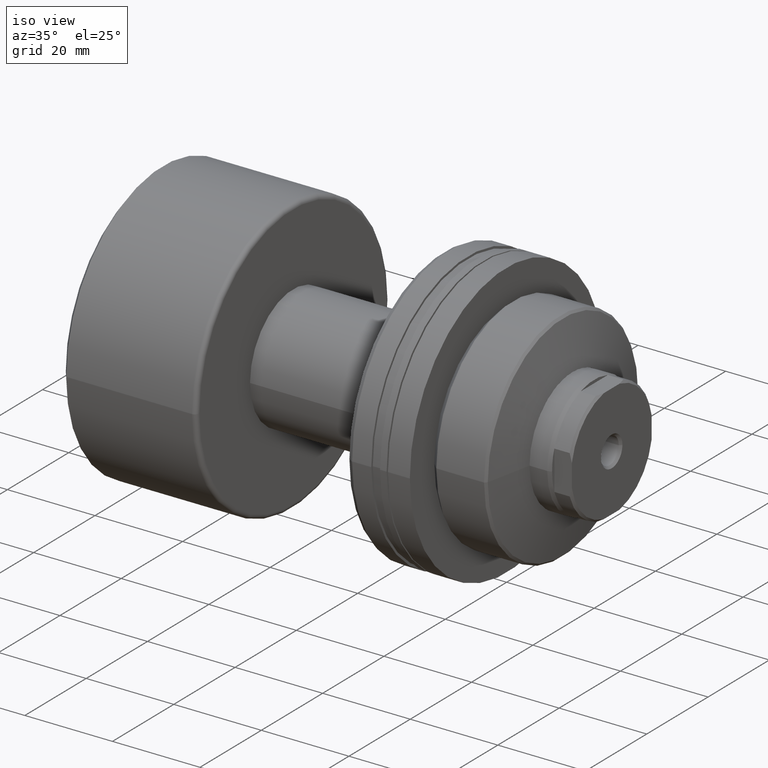
[diagram: clean part render]
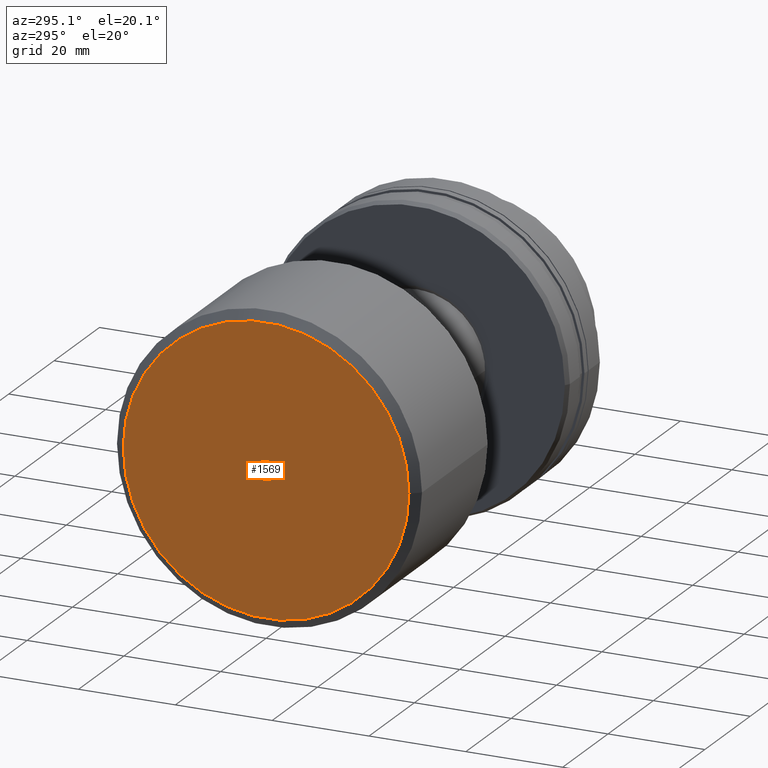
[diagram: tour spotlight — one face highlighted and labeled with its STEP entity id]
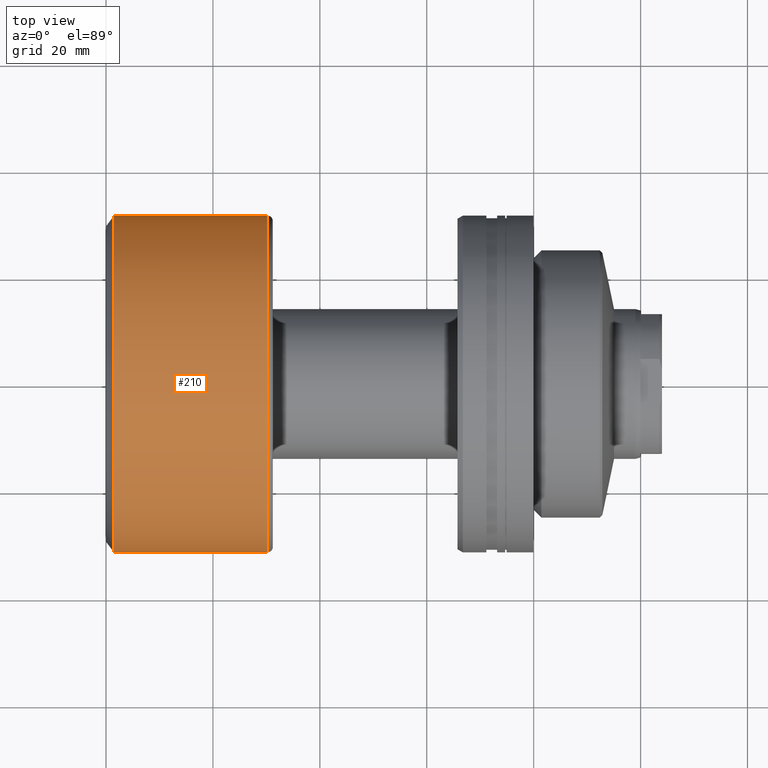
[diagram: tour spotlight — one face highlighted and labeled with its STEP entity id]
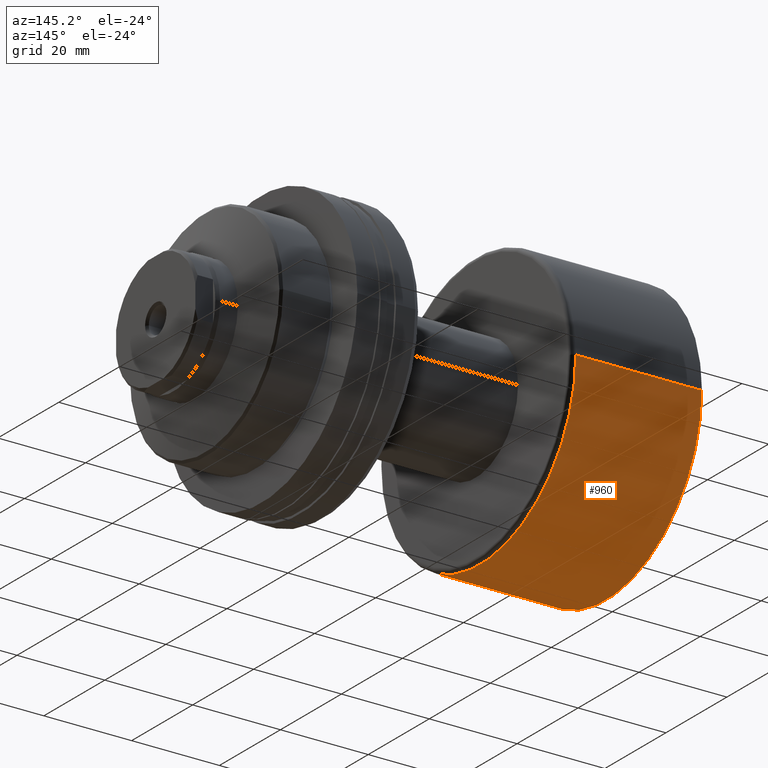
[diagram: tour spotlight — one face highlighted and labeled with its STEP entity id]
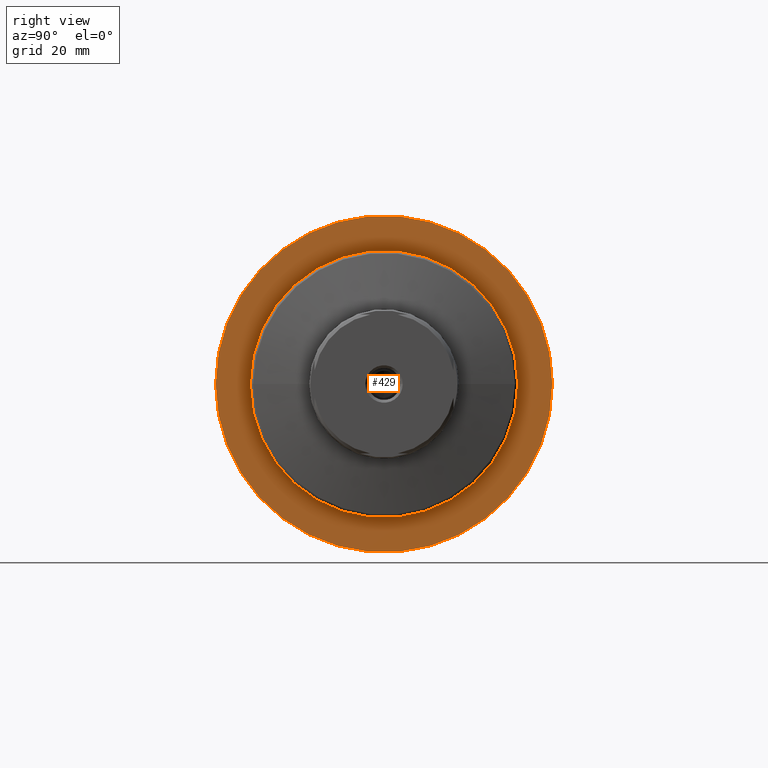
[diagram: tour spotlight — one face highlighted and labeled with its STEP entity id]
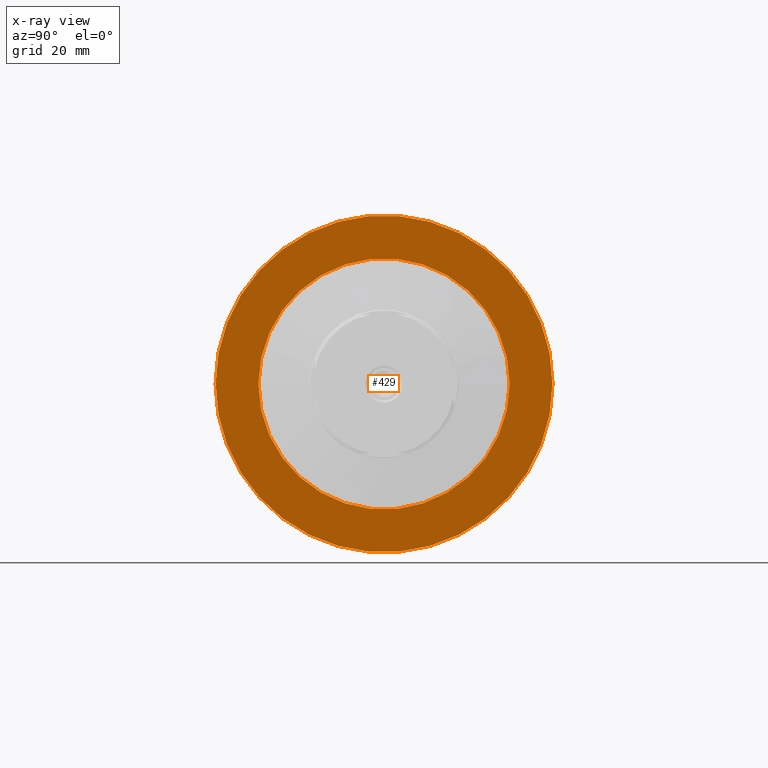
[diagram: x-ray of the same camera — body ghosted, this tour face saturated]
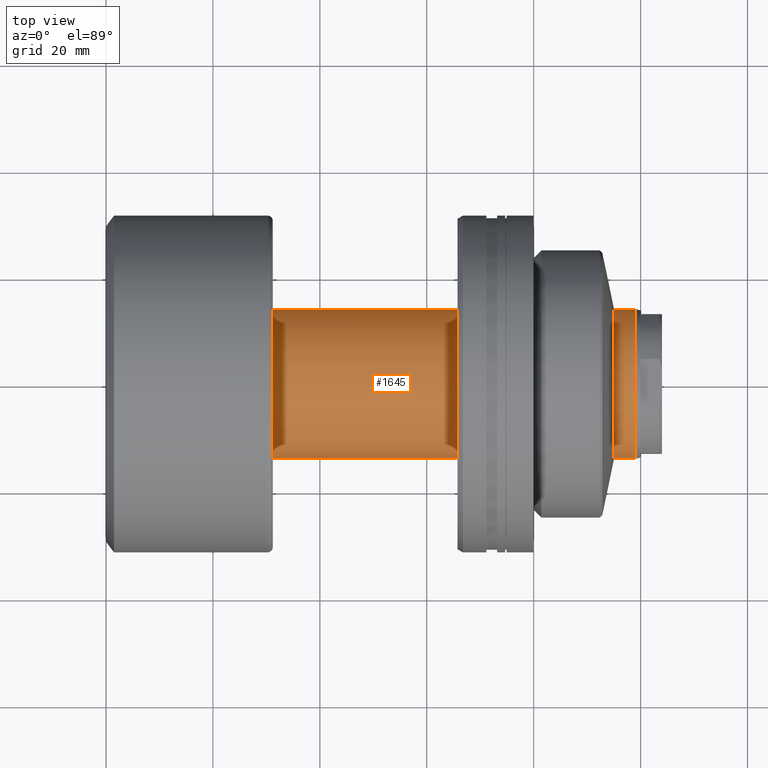
[diagram: tour spotlight — one face highlighted and labeled with its STEP entity id]
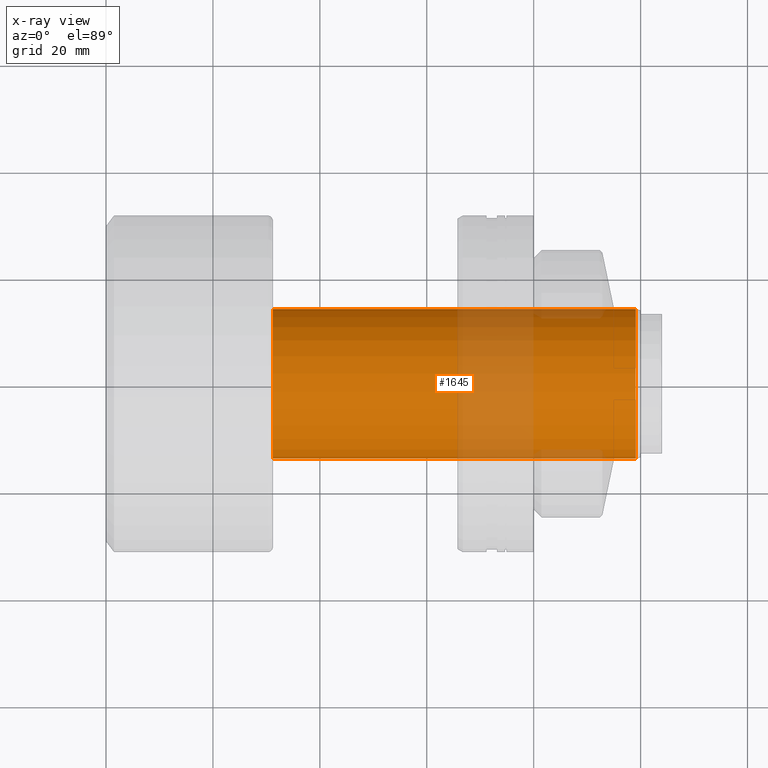
[diagram: x-ray of the same camera — body ghosted, this tour face saturated]
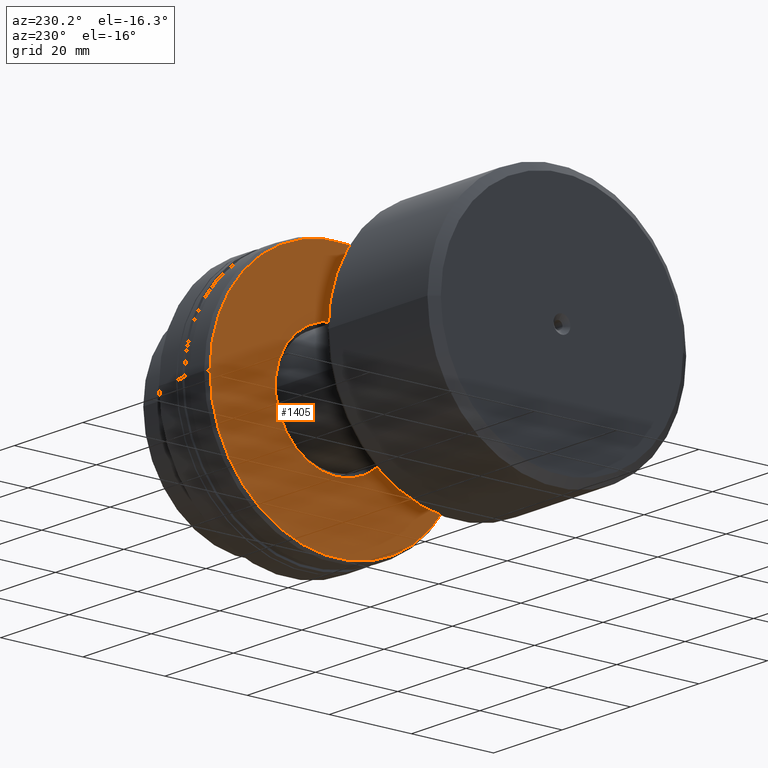
[diagram: tour spotlight — one face highlighted and labeled with its STEP entity id]
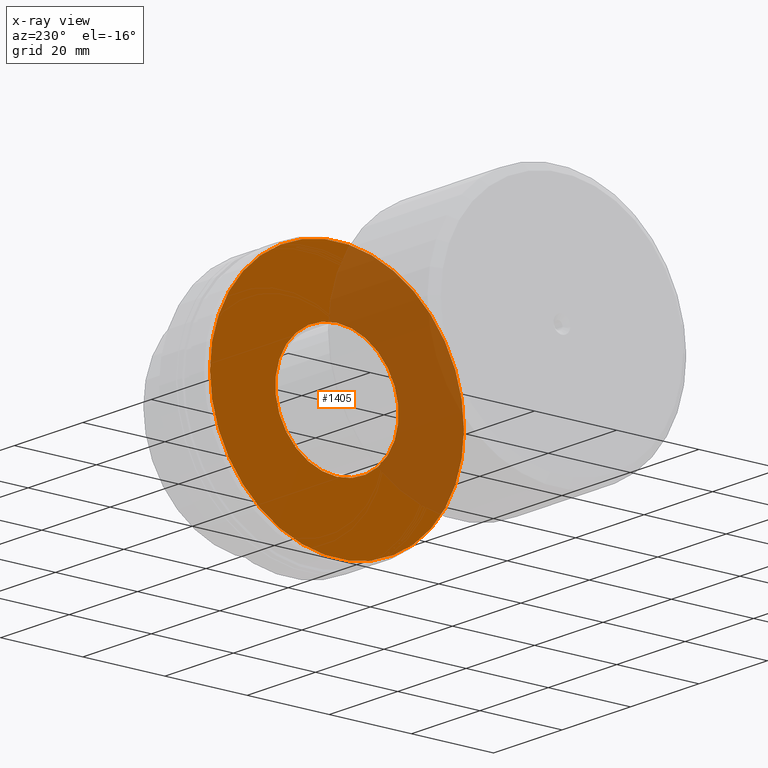
[diagram: x-ray of the same camera — body ghosted, this tour face saturated]
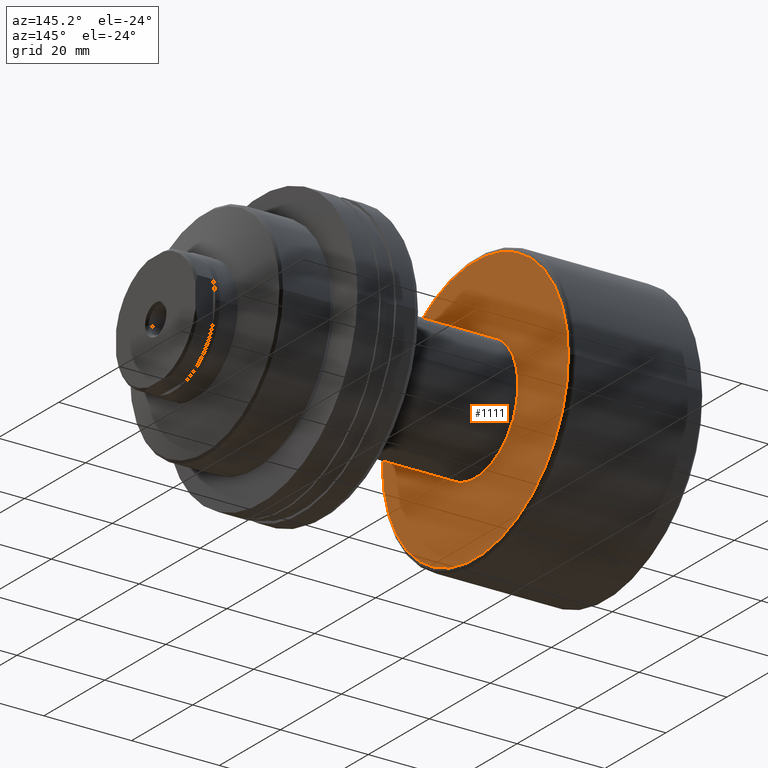
[diagram: tour spotlight — one face highlighted and labeled with its STEP entity id]
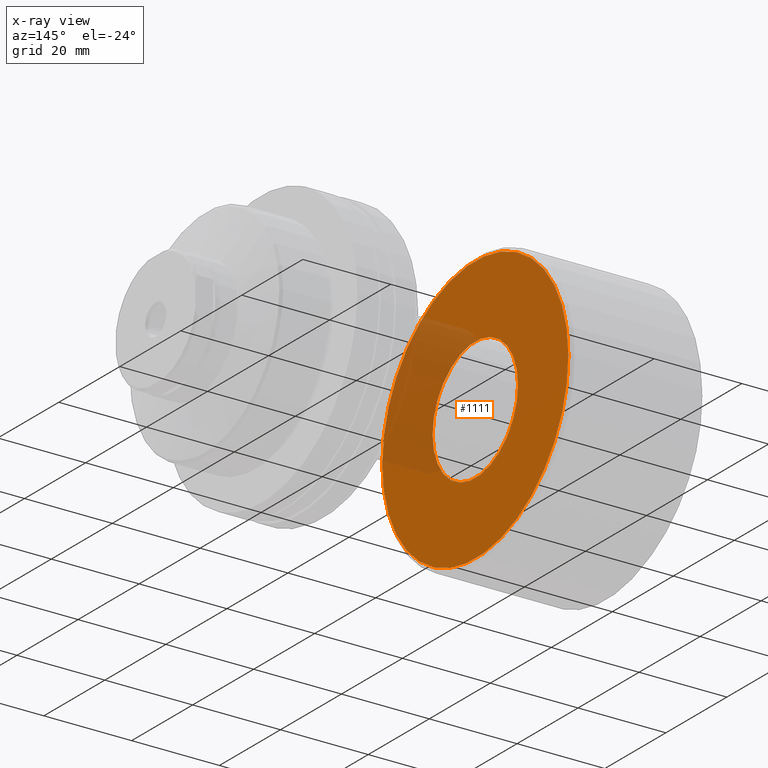
[diagram: x-ray of the same camera — body ghosted, this tour face saturated]
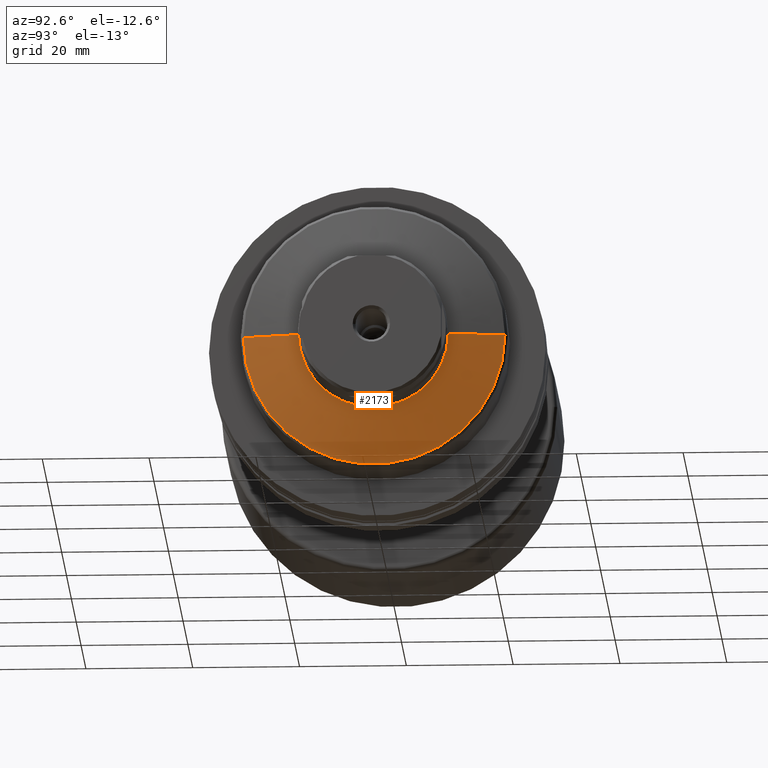
[diagram: tour spotlight — one face highlighted and labeled with its STEP entity id]
A machine part: a face-by-face anatomy tour. The part has 74 B-rep faces; the first image is the clean iso view, then the 8 largest visible faces are spotlighted one at a time (largest first), each with its STEP entity span.

Face 1 — auxiliary view, entity #1569. In plain terms, the highlighted planar face has unit normal (-1, -0, 0).
Definition (entity closure, byte-faithful):
#12 = CIRCLE ( 'NONE', #461, 29.50000000000000000 ) ;
#44 = EDGE_LOOP ( 'NONE', ( #328, #1307 ) ) ;
#79 = CARTESIAN_POINT ( 'NONE',  ( 1.648596536237158567E-15, 2.541142108230784202E-16, -2.075000000000021494 ) ) ;
#180 = AXIS2_PLACEMENT_3D ( 'NONE', #1364, #2208, #1503 ) ;
#191 = VERTEX_POINT ( 'NONE', #2124 ) ;
#234 = AXIS2_PLACEMENT_3D ( 'NONE', #716, #1583, #2290 ) ;
#280 = ORIENTED_EDGE ( 'NONE', *, *, #394, .T. ) ;
#328 = ORIENTED_EDGE ( 'NONE', *, *, #1773, .T. ) ;
#331 = PLANE ( 'NONE',  #234 ) ;
#394 = EDGE_CURVE ( 'NONE', #972, #1181, #1139, .T. ) ;
#461 = AXIS2_PLACEMENT_3D ( 'NONE', #989, #653, #1175 ) ;
#500 = FACE_BOUND ( 'NONE', #44, .T. ) ;
#520 = AXIS2_PLACEMENT_3D ( 'NONE', #1719, #1332, #1909 ) ;
#653 = DIRECTION ( 'NONE',  ( -1.000000000000000000, -1.069542322069065801E-17, -0.000000000000000000 ) ) ;
#716 = CARTESIAN_POINT ( 'NONE',  ( 1.648596536237158567E-15, 1.763243767522109653E-32, 0.000000000000000000 ) ) ;
#746 = CIRCLE ( 'NONE', #2213, 2.075000000000021494 ) ;
#972 = VERTEX_POINT ( 'NONE', #1322 ) ;
#989 = CARTESIAN_POINT ( 'NONE',  ( 3.297193072474317133E-15, 3.526487535044219306E-32, 0.000000000000000000 ) ) ;
#1139 = CIRCLE ( 'NONE', #520, 29.50000000000000000 ) ;
#1175 = DIRECTION ( 'NONE',  ( 1.069542322069065647E-17, -1.000000000000000000, 0.000000000000000000 ) ) ;
#1181 = VERTEX_POINT ( 'NONE', #1673 ) ;
#1220 = CARTESIAN_POINT ( 'NONE',  ( 1.648596536237158567E-15, 0.000000000000000000, 0.000000000000000000 ) ) ;
#1280 = EDGE_LOOP ( 'NONE', ( #1916, #280 ) ) ;
#1307 = ORIENTED_EDGE ( 'NONE', *, *, #1331, .T. ) ;
#1322 = CARTESIAN_POINT ( 'NONE',  ( 3.612708057484691604E-15, -29.50000000000000000, 3.735172737399426752E-15 ) ) ;
#1331 = EDGE_CURVE ( 'NONE', #1459, #191, #746, .T. ) ;
#1332 = DIRECTION ( 'NONE',  ( -1.000000000000000000, -1.069542322069065801E-17, -0.000000000000000000 ) ) ;
#1364 = CARTESIAN_POINT ( 'NONE',  ( 1.648596536237158567E-15, 0.000000000000000000, 0.000000000000000000 ) ) ;
#1459 = VERTEX_POINT ( 'NONE', #79 ) ;
#1498 = EDGE_CURVE ( 'NONE', #1181, #972, #12, .T. ) ;
#1503 = DIRECTION ( 'NONE',  ( 1.069542322069063644E-17, -1.000000000000000000, 0.000000000000000000 ) ) ;
#1569 = ADVANCED_FACE ( 'NONE', ( #500, #1571 ), #331, .T. ) ;
#1571 = FACE_OUTER_BOUND ( 'NONE', #1280, .T. ) ;
#1583 = DIRECTION ( 'NONE',  ( -1.000000000000000000, -1.069542322069065801E-17, 0.000000000000000000 ) ) ;
#1673 = CARTESIAN_POINT ( 'NONE',  ( 2.981678087463943057E-15, 29.50000000000000000, 0.000000000000000000 ) ) ;
#1695 = DIRECTION ( 'NONE',  ( 1.069542322069063644E-17, -1.000000000000000000, 0.000000000000000000 ) ) ;
#1719 = CARTESIAN_POINT ( 'NONE',  ( 3.297193072474317133E-15, 3.526487535044219306E-32, 0.000000000000000000 ) ) ;
#1773 = EDGE_CURVE ( 'NONE', #191, #1459, #2196, .T. ) ;
#1909 = DIRECTION ( 'NONE',  ( 1.069542322069065647E-17, -1.000000000000000000, 0.000000000000000000 ) ) ;
#1913 = DIRECTION ( 'NONE',  ( 1.000000000000000000, 1.069542322069065801E-17, 0.000000000000000000 ) ) ;
#1916 = ORIENTED_EDGE ( 'NONE', *, *, #1498, .T. ) ;
#2124 = CARTESIAN_POINT ( 'NONE',  ( 1.648596536237158567E-15, 0.000000000000000000, 2.075000000000021494 ) ) ;
#2196 = CIRCLE ( 'NONE', #180, 2.075000000000021494 ) ;
#2208 = DIRECTION ( 'NONE',  ( 1.000000000000000000, 1.069542322069065801E-17, 0.000000000000000000 ) ) ;
#2213 = AXIS2_PLACEMENT_3D ( 'NONE', #1220, #1913, #1695 ) ;
#2290 = DIRECTION ( 'NONE',  ( 1.069542322069065801E-17, -1.000000000000000000, 0.000000000000000000 ) ) ;

Face 2 — top view, entity #210. In plain terms, the highlighted cylindrical surface (partial cylindrical patch) has radius 31.5 mm, axis along (-1, -0, -0).
Definition (entity closure, byte-faithful):
#30 = CARTESIAN_POINT ( 'NONE',  ( 0.000000000000000000, 0.000000000000000000, 0.000000000000000000 ) ) ;
#60 = DIRECTION ( 'NONE',  ( 1.069542322069065955E-17, -1.000000000000000000, 0.000000000000000000 ) ) ;
#114 = CARTESIAN_POINT ( 'NONE',  ( 1.500000000000003775, -31.50000000000000000, 3.857637417314162689E-15 ) ) ;
#210 = ADVANCED_FACE ( 'NONE', ( #1262 ), #1130, .T. ) ;
#495 = ORIENTED_EDGE ( 'NONE', *, *, #2305, .T. ) ;
#663 = CIRCLE ( 'NONE', #2178, 31.50000000000000000 ) ;
#753 = ORIENTED_EDGE ( 'NONE', *, *, #1376, .F. ) ;
#904 = VECTOR ( 'NONE', #1793, 1000.000000000000000 ) ;
#1007 = VERTEX_POINT ( 'NONE', #114 ) ;
#1130 = CYLINDRICAL_SURFACE ( 'NONE', #2156, 31.50000000000000000 ) ;
#1144 = VERTEX_POINT ( 'NONE', #1413 ) ;
#1147 = LINE ( 'NONE', #1348, #1209 ) ;
#1151 = CARTESIAN_POINT ( 'NONE',  ( 30.19999999999999929, 31.50000000000000000, 3.857637417314162689E-15 ) ) ;
#1157 = CARTESIAN_POINT ( 'NONE',  ( 30.19999999999999929, 3.230017812648578475E-16, 0.000000000000000000 ) ) ;
#1159 = CARTESIAN_POINT ( 'NONE',  ( 30.19999999999999929, -31.50000000000000000, 0.000000000000000000 ) ) ;
#1209 = VECTOR ( 'NONE', #1261, 1000.000000000000000 ) ;
#1247 = ORIENTED_EDGE ( 'NONE', *, *, #1426, .F. ) ;
#1258 = ORIENTED_EDGE ( 'NONE', *, *, #2094, .T. ) ;
#1261 = DIRECTION ( 'NONE',  ( -1.000000000000000000, -1.069542322069065801E-17, -0.000000000000000000 ) ) ;
#1262 = FACE_OUTER_BOUND ( 'NONE', #1447, .T. ) ;
#1283 = DIRECTION ( 'NONE',  ( -1.000000000000000000, -1.069542322069065801E-17, -0.000000000000000000 ) ) ;
#1348 = CARTESIAN_POINT ( 'NONE',  ( 3.369058314517557588E-16, -31.50000000000000000, 0.000000000000000000 ) ) ;
#1376 = EDGE_CURVE ( 'NONE', #1523, #1007, #1147, .T. ) ;
#1413 = CARTESIAN_POINT ( 'NONE',  ( 1.500000000000003331, 31.50000000000000000, 0.000000000000000000 ) ) ;
#1426 = EDGE_CURVE ( 'NONE', #1007, #1144, #663, .T. ) ;
#1447 = EDGE_LOOP ( 'NONE', ( #1258, #495, #1247, #753 ) ) ;
#1452 = AXIS2_PLACEMENT_3D ( 'NONE', #1157, #2043, #1868 ) ;
#1523 = VERTEX_POINT ( 'NONE', #1159 ) ;
#1617 = LINE ( 'NONE', #1817, #904 ) ;
#1666 = CIRCLE ( 'NONE', #1452, 31.50000000000000000 ) ;
#1735 = VERTEX_POINT ( 'NONE', #1151 ) ;
#1793 = DIRECTION ( 'NONE',  ( -1.000000000000000000, -1.069542322069065801E-17, -0.000000000000000000 ) ) ;
#1817 = CARTESIAN_POINT ( 'NONE',  ( -3.369058314517557588E-16, 31.50000000000000000, 3.857637417314162689E-15 ) ) ;
#1838 = CARTESIAN_POINT ( 'NONE',  ( 1.500000000000003553, 1.604313483103602168E-17, 0.000000000000000000 ) ) ;
#1868 = DIRECTION ( 'NONE',  ( 0.000000000000000000, -1.000000000000000000, 0.000000000000000000 ) ) ;
#1990 = DIRECTION ( 'NONE',  ( 1.376764663473656463E-17, -1.000000000000000000, 0.000000000000000000 ) ) ;
#2043 = DIRECTION ( 'NONE',  ( -1.000000000000000000, -1.069542322069065801E-17, -0.000000000000000000 ) ) ;
#2094 = EDGE_CURVE ( 'NONE', #1523, #1735, #1666, .T. ) ;
#2156 = AXIS2_PLACEMENT_3D ( 'NONE', #30, #1283, #60 ) ;
#2175 = DIRECTION ( 'NONE',  ( -1.000000000000000000, -1.069542322069065801E-17, -0.000000000000000000 ) ) ;
#2178 = AXIS2_PLACEMENT_3D ( 'NONE', #1838, #2175, #1990 ) ;
#2305 = EDGE_CURVE ( 'NONE', #1735, #1144, #1617, .T. ) ;

Face 3 — auxiliary view, entity #960. In plain terms, the highlighted cylindrical surface (partial cylindrical patch) has radius 31.5 mm, axis along (-1, -0, -0).
Definition (entity closure, byte-faithful):
#31 = DIRECTION ( 'NONE',  ( -1.000000000000000000, -1.069542322069065801E-17, -0.000000000000000000 ) ) ;
#67 = EDGE_LOOP ( 'NONE', ( #118, #574, #1697, #1866 ) ) ;
#114 = CARTESIAN_POINT ( 'NONE',  ( 1.500000000000003775, -31.50000000000000000, 3.857637417314162689E-15 ) ) ;
#118 = ORIENTED_EDGE ( 'NONE', *, *, #2305, .F. ) ;
#152 = CYLINDRICAL_SURFACE ( 'NONE', #1336, 31.50000000000000000 ) ;
#286 = DIRECTION ( 'NONE',  ( -1.000000000000000000, -1.069542322069065801E-17, -0.000000000000000000 ) ) ;
#473 = AXIS2_PLACEMENT_3D ( 'NONE', #509, #286, #676 ) ;
#492 = CARTESIAN_POINT ( 'NONE',  ( 1.500000000000003553, 1.604313483103602168E-17, 0.000000000000000000 ) ) ;
#509 = CARTESIAN_POINT ( 'NONE',  ( 30.19999999999999929, 3.230017812648578475E-16, 0.000000000000000000 ) ) ;
#574 = ORIENTED_EDGE ( 'NONE', *, *, #1018, .T. ) ;
#676 = DIRECTION ( 'NONE',  ( 0.000000000000000000, -1.000000000000000000, 0.000000000000000000 ) ) ;
#900 = AXIS2_PLACEMENT_3D ( 'NONE', #492, #1029, #1754 ) ;
#904 = VECTOR ( 'NONE', #1793, 1000.000000000000000 ) ;
#948 = EDGE_CURVE ( 'NONE', #1144, #1007, #1445, .T. ) ;
#960 = ADVANCED_FACE ( 'NONE', ( #1397 ), #152, .T. ) ;
#1007 = VERTEX_POINT ( 'NONE', #114 ) ;
#1018 = EDGE_CURVE ( 'NONE', #1735, #1523, #1933, .T. ) ;
#1029 = DIRECTION ( 'NONE',  ( -1.000000000000000000, -1.069542322069065801E-17, -0.000000000000000000 ) ) ;
#1144 = VERTEX_POINT ( 'NONE', #1413 ) ;
#1147 = LINE ( 'NONE', #1348, #1209 ) ;
#1151 = CARTESIAN_POINT ( 'NONE',  ( 30.19999999999999929, 31.50000000000000000, 3.857637417314162689E-15 ) ) ;
#1159 = CARTESIAN_POINT ( 'NONE',  ( 30.19999999999999929, -31.50000000000000000, 0.000000000000000000 ) ) ;
#1209 = VECTOR ( 'NONE', #1261, 1000.000000000000000 ) ;
#1261 = DIRECTION ( 'NONE',  ( -1.000000000000000000, -1.069542322069065801E-17, -0.000000000000000000 ) ) ;
#1336 = AXIS2_PLACEMENT_3D ( 'NONE', #2296, #31, #1836 ) ;
#1348 = CARTESIAN_POINT ( 'NONE',  ( 3.369058314517557588E-16, -31.50000000000000000, 0.000000000000000000 ) ) ;
#1376 = EDGE_CURVE ( 'NONE', #1523, #1007, #1147, .T. ) ;
#1397 = FACE_OUTER_BOUND ( 'NONE', #67, .T. ) ;
#1413 = CARTESIAN_POINT ( 'NONE',  ( 1.500000000000003331, 31.50000000000000000, 0.000000000000000000 ) ) ;
#1445 = CIRCLE ( 'NONE', #900, 31.50000000000000000 ) ;
#1523 = VERTEX_POINT ( 'NONE', #1159 ) ;
#1617 = LINE ( 'NONE', #1817, #904 ) ;
#1697 = ORIENTED_EDGE ( 'NONE', *, *, #1376, .T. ) ;
#1735 = VERTEX_POINT ( 'NONE', #1151 ) ;
#1754 = DIRECTION ( 'NONE',  ( 1.376764663473656463E-17, -1.000000000000000000, 0.000000000000000000 ) ) ;
#1793 = DIRECTION ( 'NONE',  ( -1.000000000000000000, -1.069542322069065801E-17, -0.000000000000000000 ) ) ;
#1817 = CARTESIAN_POINT ( 'NONE',  ( -3.369058314517557588E-16, 31.50000000000000000, 3.857637417314162689E-15 ) ) ;
#1836 = DIRECTION ( 'NONE',  ( 1.069542322069065955E-17, -1.000000000000000000, 0.000000000000000000 ) ) ;
#1866 = ORIENTED_EDGE ( 'NONE', *, *, #948, .F. ) ;
#1933 = CIRCLE ( 'NONE', #473, 31.50000000000000000 ) ;
#2296 = CARTESIAN_POINT ( 'NONE',  ( 0.000000000000000000, 0.000000000000000000, 0.000000000000000000 ) ) ;
#2305 = EDGE_CURVE ( 'NONE', #1735, #1144, #1617, .T. ) ;

Face 4 — right view, entity #429. An x-ray twin of the same camera follows (body ghosted, this face saturated) — the face is partly hidden behind the body. In plain terms, the highlighted planar face has unit normal (-1, -0, 0).
Definition (entity closure, byte-faithful):
#130 = DIRECTION ( 'NONE',  ( 1.931394410353556421E-15, -1.000000000000000000, 0.000000000000000000 ) ) ;
#138 = EDGE_LOOP ( 'NONE', ( #246, #1114 ) ) ;
#147 = CARTESIAN_POINT ( 'NONE',  ( -17.99999999999999289, -31.50000000000000000, 0.000000000000000000 ) ) ;
#239 = ORIENTED_EDGE ( 'NONE', *, *, #748, .F. ) ;
#246 = ORIENTED_EDGE ( 'NONE', *, *, #1786, .T. ) ;
#279 = FACE_BOUND ( 'NONE', #1564, .T. ) ;
#330 = VERTEX_POINT ( 'NONE', #2214 ) ;
#429 = ADVANCED_FACE ( 'NONE', ( #279, #1584 ), #1062, .F. ) ;
#521 = AXIS2_PLACEMENT_3D ( 'NONE', #1726, #1545, #2087 ) ;
#528 = DIRECTION ( 'NONE',  ( 1.000000000000000000, 1.931394410353556421E-15, -0.000000000000000000 ) ) ;
#542 = AXIS2_PLACEMENT_3D ( 'NONE', #678, #528, #1061 ) ;
#551 = DIRECTION ( 'NONE',  ( -1.919268526612579991E-15, 1.000000000000000000, 0.000000000000000000 ) ) ;
#672 = VERTEX_POINT ( 'NONE', #994 ) ;
#678 = CARTESIAN_POINT ( 'NONE',  ( -18.00000000000005684, 2.371756733105773926E-14, 0.000000000000000000 ) ) ;
#696 = DIRECTION ( 'NONE',  ( 1.000000000000000000, 1.931394410353556421E-15, -0.000000000000000000 ) ) ;
#739 = DIRECTION ( 'NONE',  ( 1.000000000000000000, 1.931394410353556421E-15, -0.000000000000000000 ) ) ;
#743 = CIRCLE ( 'NONE', #542, 31.50000000000002132 ) ;
#748 = EDGE_CURVE ( 'NONE', #330, #1971, #1810, .T. ) ;
#870 = AXIS2_PLACEMENT_3D ( 'NONE', #147, #1733, #130 ) ;
#994 = CARTESIAN_POINT ( 'NONE',  ( -17.99999999999999645, -31.50000000000000000, 3.857637417314164267E-15 ) ) ;
#1061 = DIRECTION ( 'NONE',  ( -1.982541115402063729E-15, 1.000000000000000000, 0.000000000000000000 ) ) ;
#1062 = PLANE ( 'NONE',  #870 ) ;
#1114 = ORIENTED_EDGE ( 'NONE', *, *, #1631, .T. ) ;
#1237 = CARTESIAN_POINT ( 'NONE',  ( -18.00000000000004619, 2.371756733105775503E-14, 0.000000000000000000 ) ) ;
#1287 = CARTESIAN_POINT ( 'NONE',  ( -18.00000000000012079, 31.50000000000004263, 0.000000000000000000 ) ) ;
#1404 = VERTEX_POINT ( 'NONE', #1287 ) ;
#1414 = DIRECTION ( 'NONE',  ( -1.919268526612579991E-15, 1.000000000000000000, 0.000000000000000000 ) ) ;
#1545 = DIRECTION ( 'NONE',  ( 1.000000000000000000, 1.931394410353556421E-15, -0.000000000000000000 ) ) ;
#1564 = EDGE_LOOP ( 'NONE', ( #239, #1655 ) ) ;
#1565 = CARTESIAN_POINT ( 'NONE',  ( -18.00000000000000355, -23.50000000000067857, 2.969768487932376647E-15 ) ) ;
#1584 = FACE_OUTER_BOUND ( 'NONE', #138, .T. ) ;
#1597 = AXIS2_PLACEMENT_3D ( 'NONE', #1237, #739, #551 ) ;
#1607 = EDGE_CURVE ( 'NONE', #1971, #330, #2254, .T. ) ;
#1631 = EDGE_CURVE ( 'NONE', #672, #1404, #743, .T. ) ;
#1655 = ORIENTED_EDGE ( 'NONE', *, *, #1607, .F. ) ;
#1726 = CARTESIAN_POINT ( 'NONE',  ( -18.00000000000005684, 2.371756733105773926E-14, 0.000000000000000000 ) ) ;
#1733 = DIRECTION ( 'NONE',  ( -1.000000000000000000, -1.931394410353556421E-15, 0.000000000000000000 ) ) ;
#1749 = CIRCLE ( 'NONE', #521, 31.50000000000002132 ) ;
#1786 = EDGE_CURVE ( 'NONE', #1404, #672, #1749, .T. ) ;
#1810 = CIRCLE ( 'NONE', #1597, 23.50000000000070344 ) ;
#1939 = CARTESIAN_POINT ( 'NONE',  ( -18.00000000000004619, 2.371756733105775503E-14, 0.000000000000000000 ) ) ;
#1971 = VERTEX_POINT ( 'NONE', #1565 ) ;
#2087 = DIRECTION ( 'NONE',  ( -1.982541115402063729E-15, 1.000000000000000000, 0.000000000000000000 ) ) ;
#2214 = CARTESIAN_POINT ( 'NONE',  ( -18.00000000000009237, 23.50000000000072831, 0.000000000000000000 ) ) ;
#2254 = CIRCLE ( 'NONE', #2295, 23.50000000000070344 ) ;
#2295 = AXIS2_PLACEMENT_3D ( 'NONE', #1939, #696, #1414 ) ;

Face 5 — top view, entity #1645. An x-ray twin of the same camera follows (body ghosted, this face saturated) — the face is partly hidden behind the body. In plain terms, the highlighted cylindrical surface (partial cylindrical patch) has radius 14 mm, axis along (-1, -0, -0).
Definition (entity closure, byte-faithful):
#9 = DIRECTION ( 'NONE',  ( 0.000000000000000000, -1.000000000000000000, 0.000000000000000000 ) ) ;
#139 = AXIS2_PLACEMENT_3D ( 'NONE', #1040, #2134, #697 ) ;
#300 = CARTESIAN_POINT ( 'NONE',  ( 1.497359250896702259E-16, -14.00000000000009592, 0.000000000000000000 ) ) ;
#319 = CYLINDRICAL_SURFACE ( 'NONE', #320, 14.00000000000009592 ) ;
#320 = AXIS2_PLACEMENT_3D ( 'NONE', #1025, #1669, #1432 ) ;
#382 = CARTESIAN_POINT ( 'NONE',  ( 99.06675751232378957, -14.00000000000019362, 0.000000000000000000 ) ) ;
#444 = EDGE_CURVE ( 'NONE', #571, #2282, #1000, .T. ) ;
#561 = DIRECTION ( 'NONE',  ( -1.000000000000000000, -1.069542322069065801E-17, -0.000000000000000000 ) ) ;
#563 = DIRECTION ( 'NONE',  ( -1.000000000000000000, -1.069542322069065801E-17, -0.000000000000000000 ) ) ;
#571 = VERTEX_POINT ( 'NONE', #1272 ) ;
#697 = DIRECTION ( 'NONE',  ( 0.000000000000000000, -1.000000000000000000, 0.000000000000000000 ) ) ;
#749 = CARTESIAN_POINT ( 'NONE',  ( 99.06675751232378957, 1.059560898695838428E-15, 0.000000000000000000 ) ) ;
#761 = VERTEX_POINT ( 'NONE', #1059 ) ;
#915 = CARTESIAN_POINT ( 'NONE',  ( -1.497359250896702259E-16, 14.00000000000009592, 1.714505518806306274E-15 ) ) ;
#920 = CIRCLE ( 'NONE', #1536, 14.00000000000019540 ) ;
#966 = ORIENTED_EDGE ( 'NONE', *, *, #1249, .T. ) ;
#1000 = CIRCLE ( 'NONE', #139, 13.99999999999999822 ) ;
#1003 = EDGE_LOOP ( 'NONE', ( #966, #2000, #1920, #2283 ) ) ;
#1025 = CARTESIAN_POINT ( 'NONE',  ( 0.000000000000000000, 0.000000000000000000, 0.000000000000000000 ) ) ;
#1040 = CARTESIAN_POINT ( 'NONE',  ( 31.19999999999999929, 3.336972044855484916E-16, 0.000000000000000000 ) ) ;
#1059 = CARTESIAN_POINT ( 'NONE',  ( 99.06675751232378957, 14.00000000000019540, 1.714505518806318501E-15 ) ) ;
#1178 = LINE ( 'NONE', #300, #2160 ) ;
#1249 = EDGE_CURVE ( 'NONE', #1864, #761, #920, .T. ) ;
#1257 = LINE ( 'NONE', #915, #2122 ) ;
#1270 = CARTESIAN_POINT ( 'NONE',  ( 31.19999999999999929, 13.99999999999999822, 1.714505518806300357E-15 ) ) ;
#1272 = CARTESIAN_POINT ( 'NONE',  ( 31.19999999999999929, -13.99999999999999822, 0.000000000000000000 ) ) ;
#1432 = DIRECTION ( 'NONE',  ( 1.069542322069065647E-17, -1.000000000000000000, 0.000000000000000000 ) ) ;
#1536 = AXIS2_PLACEMENT_3D ( 'NONE', #749, #563, #9 ) ;
#1596 = FACE_OUTER_BOUND ( 'NONE', #1003, .T. ) ;
#1645 = ADVANCED_FACE ( 'NONE', ( #1596 ), #319, .T. ) ;
#1667 = DIRECTION ( 'NONE',  ( -1.000000000000000000, -1.069542322069065801E-17, -0.000000000000000000 ) ) ;
#1669 = DIRECTION ( 'NONE',  ( -1.000000000000000000, -1.069542322069065801E-17, -0.000000000000000000 ) ) ;
#1864 = VERTEX_POINT ( 'NONE', #382 ) ;
#1920 = ORIENTED_EDGE ( 'NONE', *, *, #444, .F. ) ;
#2000 = ORIENTED_EDGE ( 'NONE', *, *, #2280, .T. ) ;
#2122 = VECTOR ( 'NONE', #561, 1000.000000000000000 ) ;
#2134 = DIRECTION ( 'NONE',  ( -1.000000000000000000, -1.069542322069065801E-17, -0.000000000000000000 ) ) ;
#2160 = VECTOR ( 'NONE', #1667, 1000.000000000000000 ) ;
#2186 = EDGE_CURVE ( 'NONE', #1864, #571, #1178, .T. ) ;
#2280 = EDGE_CURVE ( 'NONE', #761, #2282, #1257, .T. ) ;
#2282 = VERTEX_POINT ( 'NONE', #1270 ) ;
#2283 = ORIENTED_EDGE ( 'NONE', *, *, #2186, .F. ) ;

Face 6 — auxiliary view, entity #1405. An x-ray twin of the same camera follows (body ghosted, this face saturated) — the face is partly hidden behind the body. In plain terms, the highlighted planar face has unit normal (1, 0, 0).
Definition (entity closure, byte-faithful):
#17 = DIRECTION ( 'NONE',  ( 1.000000000000000000, 1.931394410353556421E-15, -0.000000000000000000 ) ) ;
#262 = CARTESIAN_POINT ( 'NONE',  ( -32.20000000000005258, -3.708233295962754354E-15, 0.000000000000000000 ) ) ;
#274 = DIRECTION ( 'NONE',  ( 1.000000000000000000, 1.931394410353556421E-15, -0.000000000000000000 ) ) ;
#290 = CIRCLE ( 'NONE', #1546, 15.00000000000004796 ) ;
#302 = CIRCLE ( 'NONE', #1602, 15.00000000000004796 ) ;
#310 = VERTEX_POINT ( 'NONE', #2205 ) ;
#337 = EDGE_CURVE ( 'NONE', #1912, #310, #828, .T. ) ;
#387 = EDGE_LOOP ( 'NONE', ( #1614, #1521 ) ) ;
#398 = FACE_BOUND ( 'NONE', #387, .T. ) ;
#552 = EDGE_CURVE ( 'NONE', #1585, #1828, #290, .T. ) ;
#613 = CARTESIAN_POINT ( 'NONE',  ( -32.20000000000001705, 0.000000000000000000, 0.000000000000000000 ) ) ;
#616 = CARTESIAN_POINT ( 'NONE',  ( -32.20000000000001705, -3.708233295962696767E-15, 0.000000000000000000 ) ) ;
#617 = CARTESIAN_POINT ( 'NONE',  ( -32.20000000000005258, -3.708233295962754354E-15, 0.000000000000000000 ) ) ;
#636 = DIRECTION ( 'NONE',  ( 1.000000000000000000, 1.931394410353556421E-15, -0.000000000000000000 ) ) ;
#675 = CARTESIAN_POINT ( 'NONE',  ( -32.20000000000001705, 0.000000000000000000, 0.000000000000000000 ) ) ;
#700 = EDGE_LOOP ( 'NONE', ( #1578, #1108 ) ) ;
#708 = AXIS2_PLACEMENT_3D ( 'NONE', #616, #2014, #1465 ) ;
#771 = PLANE ( 'NONE',  #708 ) ;
#791 = EDGE_CURVE ( 'NONE', #310, #1912, #1101, .T. ) ;
#828 = CIRCLE ( 'NONE', #1100, 30.92264973081047330 ) ;
#1100 = AXIS2_PLACEMENT_3D ( 'NONE', #262, #636, #1882 ) ;
#1101 = CIRCLE ( 'NONE', #1180, 30.92264973081047330 ) ;
#1108 = ORIENTED_EDGE ( 'NONE', *, *, #791, .F. ) ;
#1180 = AXIS2_PLACEMENT_3D ( 'NONE', #617, #1847, #1525 ) ;
#1211 = CARTESIAN_POINT ( 'NONE',  ( -32.20000000000011653, 30.92264973081046975, 0.000000000000000000 ) ) ;
#1223 = CARTESIAN_POINT ( 'NONE',  ( -32.20000000000001705, 1.836970198721031955E-15, -15.00000000000001776 ) ) ;
#1311 = DIRECTION ( 'NONE',  ( -1.850371707708588449E-15, 1.000000000000000000, 0.000000000000000000 ) ) ;
#1356 = DIRECTION ( 'NONE',  ( -1.850371707708588449E-15, 1.000000000000000000, 0.000000000000000000 ) ) ;
#1405 = ADVANCED_FACE ( 'NONE', ( #398, #1474 ), #771, .F. ) ;
#1465 = DIRECTION ( 'NONE',  ( -1.931394410353556421E-15, 1.000000000000000000, 0.000000000000000000 ) ) ;
#1474 = FACE_OUTER_BOUND ( 'NONE', #700, .T. ) ;
#1521 = ORIENTED_EDGE ( 'NONE', *, *, #552, .T. ) ;
#1525 = DIRECTION ( 'NONE',  ( -2.019556722299304144E-15, 1.000000000000000000, 0.000000000000000000 ) ) ;
#1546 = AXIS2_PLACEMENT_3D ( 'NONE', #613, #17, #1311 ) ;
#1578 = ORIENTED_EDGE ( 'NONE', *, *, #337, .F. ) ;
#1585 = VERTEX_POINT ( 'NONE', #1223 ) ;
#1602 = AXIS2_PLACEMENT_3D ( 'NONE', #675, #274, #1356 ) ;
#1614 = ORIENTED_EDGE ( 'NONE', *, *, #2109, .T. ) ;
#1804 = CARTESIAN_POINT ( 'NONE',  ( -32.20000000000001705, 0.000000000000000000, 15.00000000000001776 ) ) ;
#1828 = VERTEX_POINT ( 'NONE', #1804 ) ;
#1847 = DIRECTION ( 'NONE',  ( 1.000000000000000000, 1.931394410353556421E-15, -0.000000000000000000 ) ) ;
#1882 = DIRECTION ( 'NONE',  ( -2.019556722299304144E-15, 1.000000000000000000, 0.000000000000000000 ) ) ;
#1912 = VERTEX_POINT ( 'NONE', #1211 ) ;
#2014 = DIRECTION ( 'NONE',  ( 1.000000000000000000, 1.931394410353556421E-15, -0.000000000000000000 ) ) ;
#2109 = EDGE_CURVE ( 'NONE', #1828, #1585, #302, .T. ) ;
#2205 = CARTESIAN_POINT ( 'NONE',  ( -32.19999999999999574, -30.92264973081047685, 3.822284909356672259E-15 ) ) ;

Face 7 — auxiliary view, entity #1111. An x-ray twin of the same camera follows (body ghosted, this face saturated) — the face is partly hidden behind the body. In plain terms, the highlighted planar face has unit normal (-1, -0, 0).
Definition (entity closure, byte-faithful):
#8 = DIRECTION ( 'NONE',  ( 0.000000000000000000, -1.000000000000000000, 0.000000000000000000 ) ) ;
#46 = CARTESIAN_POINT ( 'NONE',  ( 31.19999999999999929, 30.50000000000000000, 3.796405077356795115E-15 ) ) ;
#139 = AXIS2_PLACEMENT_3D ( 'NONE', #1040, #2134, #697 ) ;
#148 = CARTESIAN_POINT ( 'NONE',  ( 31.19999999999999929, 3.336972044855484916E-16, 0.000000000000000000 ) ) ;
#157 = CARTESIAN_POINT ( 'NONE',  ( 31.19999999999999929, 3.336972044855484916E-16, 0.000000000000000000 ) ) ;
#183 = DIRECTION ( 'NONE',  ( 1.069542322069065801E-17, -1.000000000000000000, 0.000000000000000000 ) ) ;
#202 = DIRECTION ( 'NONE',  ( -1.000000000000000000, -1.069542322069065801E-17, 0.000000000000000000 ) ) ;
#224 = CARTESIAN_POINT ( 'NONE',  ( 31.19999999999999929, -30.50000000000000000, 0.000000000000000000 ) ) ;
#230 = ORIENTED_EDGE ( 'NONE', *, *, #1152, .T. ) ;
#260 = EDGE_LOOP ( 'NONE', ( #1625, #230 ) ) ;
#363 = DIRECTION ( 'NONE',  ( -1.000000000000000000, -1.069542322069065801E-17, -0.000000000000000000 ) ) ;
#444 = EDGE_CURVE ( 'NONE', #571, #2282, #1000, .T. ) ;
#474 = ORIENTED_EDGE ( 'NONE', *, *, #723, .F. ) ;
#529 = DIRECTION ( 'NONE',  ( 0.000000000000000000, -1.000000000000000000, 0.000000000000000000 ) ) ;
#534 = VERTEX_POINT ( 'NONE', #224 ) ;
#571 = VERTEX_POINT ( 'NONE', #1272 ) ;
#650 = FACE_OUTER_BOUND ( 'NONE', #719, .T. ) ;
#697 = DIRECTION ( 'NONE',  ( 0.000000000000000000, -1.000000000000000000, 0.000000000000000000 ) ) ;
#719 = EDGE_LOOP ( 'NONE', ( #1490, #474 ) ) ;
#723 = EDGE_CURVE ( 'NONE', #1830, #534, #1299, .T. ) ;
#949 = CIRCLE ( 'NONE', #1621, 30.50000000000000000 ) ;
#1000 = CIRCLE ( 'NONE', #139, 13.99999999999999822 ) ;
#1023 = CIRCLE ( 'NONE', #2098, 13.99999999999999822 ) ;
#1040 = CARTESIAN_POINT ( 'NONE',  ( 31.19999999999999929, 3.336972044855484916E-16, 0.000000000000000000 ) ) ;
#1066 = DIRECTION ( 'NONE',  ( -1.000000000000000000, -1.069542322069065801E-17, -0.000000000000000000 ) ) ;
#1086 = PLANE ( 'NONE',  #2071 ) ;
#1111 = ADVANCED_FACE ( 'NONE', ( #650, #2152 ), #1086, .F. ) ;
#1152 = EDGE_CURVE ( 'NONE', #2282, #571, #1023, .T. ) ;
#1270 = CARTESIAN_POINT ( 'NONE',  ( 31.19999999999999929, 13.99999999999999822, 1.714505518806300357E-15 ) ) ;
#1272 = CARTESIAN_POINT ( 'NONE',  ( 31.19999999999999929, -13.99999999999999822, 0.000000000000000000 ) ) ;
#1299 = CIRCLE ( 'NONE', #1960, 30.50000000000000000 ) ;
#1490 = ORIENTED_EDGE ( 'NONE', *, *, #1522, .F. ) ;
#1522 = EDGE_CURVE ( 'NONE', #534, #1830, #949, .T. ) ;
#1621 = AXIS2_PLACEMENT_3D ( 'NONE', #148, #363, #1643 ) ;
#1625 = ORIENTED_EDGE ( 'NONE', *, *, #444, .T. ) ;
#1643 = DIRECTION ( 'NONE',  ( 0.000000000000000000, -1.000000000000000000, 0.000000000000000000 ) ) ;
#1720 = CARTESIAN_POINT ( 'NONE',  ( 31.19999999999999929, 3.336972044855484916E-16, 0.000000000000000000 ) ) ;
#1830 = VERTEX_POINT ( 'NONE', #46 ) ;
#1945 = CARTESIAN_POINT ( 'NONE',  ( 31.19999999999999929, -13.99999999999999822, 0.000000000000000000 ) ) ;
#1960 = AXIS2_PLACEMENT_3D ( 'NONE', #157, #1066, #8 ) ;
#1966 = DIRECTION ( 'NONE',  ( -1.000000000000000000, -1.069542322069065801E-17, -0.000000000000000000 ) ) ;
#2071 = AXIS2_PLACEMENT_3D ( 'NONE', #1945, #202, #183 ) ;
#2098 = AXIS2_PLACEMENT_3D ( 'NONE', #1720, #1966, #529 ) ;
#2134 = DIRECTION ( 'NONE',  ( -1.000000000000000000, -1.069542322069065801E-17, -0.000000000000000000 ) ) ;
#2152 = FACE_BOUND ( 'NONE', #260, .T. ) ;
#2282 = VERTEX_POINT ( 'NONE', #1270 ) ;

Face 8 — auxiliary view, entity #2173. In plain terms, the highlighted conical surface has half-angle 78.241 deg.
Definition (entity closure, byte-faithful):
#15 = EDGE_CURVE ( 'NONE', #2064, #1065, #684, .T. ) ;
#65 = CARTESIAN_POINT ( 'NONE',  ( -5.100000000000759037, 24.50000000000006750, 3.000384657911017441E-15 ) ) ;
#136 = AXIS2_PLACEMENT_3D ( 'NONE', #1539, #1021, #830 ) ;
#169 = CARTESIAN_POINT ( 'NONE',  ( -2.914285714286113826, 5.285403157867643656E-14, 0.000000000000000000 ) ) ;
#223 = ORIENTED_EDGE ( 'NONE', *, *, #15, .T. ) ;
#256 = LINE ( 'NONE', #1675, #1704 ) ;
#269 = VERTEX_POINT ( 'NONE', #2020 ) ;
#278 = VECTOR ( 'NONE', #2032, 1000.000000000000114 ) ;
#435 = ORIENTED_EDGE ( 'NONE', *, *, #1642, .T. ) ;
#480 = CARTESIAN_POINT ( 'NONE',  ( -5.100000000000711964, 4.863255522461734884E-14, 0.000000000000000000 ) ) ;
#484 = CARTESIAN_POINT ( 'NONE',  ( -2.914285714286086737, -13.99999999999995026, 0.000000000000000000 ) ) ;
#553 = ORIENTED_EDGE ( 'NONE', *, *, #2204, .F. ) ;
#669 = FACE_OUTER_BOUND ( 'NONE', #1959, .T. ) ;
#684 = CIRCLE ( 'NONE', #136, 14.00000000000000178 ) ;
#754 = AXIS2_PLACEMENT_3D ( 'NONE', #2126, #1193, #872 ) ;
#763 = CONICAL_SURFACE ( 'NONE', #1342, 24.50000000000002132, 1.365563936788661614 ) ;
#815 = DIRECTION ( 'NONE',  ( -0.2037946783941950168, 0.9790136511092206728, 1.198945934152471440E-16 ) ) ;
#830 = DIRECTION ( 'NONE',  ( 1.920586705545750655E-15, -1.000000000000000000, 0.000000000000000000 ) ) ;
#872 = DIRECTION ( 'NONE',  ( -1.947138595484169474E-15, 1.000000000000000000, 0.000000000000000000 ) ) ;
#892 = EDGE_CURVE ( 'NONE', #269, #2197, #1742, .T. ) ;
#895 = DIRECTION ( 'NONE',  ( 1.920586705545750655E-15, -1.000000000000000000, 0.000000000000000000 ) ) ;
#1021 = DIRECTION ( 'NONE',  ( -1.000000000000000000, -1.931394410353556421E-15, 0.000000000000000000 ) ) ;
#1065 = VERTEX_POINT ( 'NONE', #484 ) ;
#1154 = ORIENTED_EDGE ( 'NONE', *, *, #1351, .T. ) ;
#1193 = DIRECTION ( 'NONE',  ( 1.000000000000000000, 1.931394410353556421E-15, -0.000000000000000000 ) ) ;
#1250 = DIRECTION ( 'NONE',  ( -1.000000000000000000, -1.931394410353556421E-15, 0.000000000000000000 ) ) ;
#1324 = CIRCLE ( 'NONE', #2292, 14.00000000000000178 ) ;
#1342 = AXIS2_PLACEMENT_3D ( 'NONE', #480, #2247, #2233 ) ;
#1351 = EDGE_CURVE ( 'NONE', #1065, #269, #1532, .T. ) ;
#1532 = LINE ( 'NONE', #1713, #278 ) ;
#1539 = CARTESIAN_POINT ( 'NONE',  ( -2.914285714286113826, 5.285403157867643656E-14, 0.000000000000000000 ) ) ;
#1642 = EDGE_CURVE ( 'NONE', #2202, #2064, #1324, .T. ) ;
#1675 = CARTESIAN_POINT ( 'NONE',  ( -5.100000000000759037, 24.50000000000007105, 3.000384657911017835E-15 ) ) ;
#1704 = VECTOR ( 'NONE', #815, 999.9999999999998863 ) ;
#1713 = CARTESIAN_POINT ( 'NONE',  ( -5.100000000000664002, -24.49999999999997158, 0.000000000000000000 ) ) ;
#1742 = CIRCLE ( 'NONE', #754, 24.50000000000002132 ) ;
#1851 = CARTESIAN_POINT ( 'NONE',  ( -2.914285714286140472, 14.00000000000005329, 2.357445088358656335E-15 ) ) ;
#1959 = EDGE_LOOP ( 'NONE', ( #553, #435, #223, #1154, #2057 ) ) ;
#2020 = CARTESIAN_POINT ( 'NONE',  ( -5.100000000000664002, -24.49999999999997513, 0.000000000000000000 ) ) ;
#2032 = DIRECTION ( 'NONE',  ( -0.2037946783941911866, -0.9790136511092213389, 0.000000000000000000 ) ) ;
#2057 = ORIENTED_EDGE ( 'NONE', *, *, #892, .T. ) ;
#2064 = VERTEX_POINT ( 'NONE', #2310 ) ;
#2126 = CARTESIAN_POINT ( 'NONE',  ( -5.100000000000711964, 4.863255522461734884E-14, 0.000000000000000000 ) ) ;
#2173 = ADVANCED_FACE ( 'NONE', ( #669 ), #763, .T. ) ;
#2197 = VERTEX_POINT ( 'NONE', #65 ) ;
#2202 = VERTEX_POINT ( 'NONE', #1851 ) ;
#2204 = EDGE_CURVE ( 'NONE', #2202, #2197, #256, .T. ) ;
#2233 = DIRECTION ( 'NONE',  ( 1.947138595484169474E-15, -1.000000000000000000, 0.000000000000000000 ) ) ;
#2247 = DIRECTION ( 'NONE',  ( -1.000000000000000000, -1.931394410353556421E-15, 0.000000000000000000 ) ) ;
#2292 = AXIS2_PLACEMENT_3D ( 'NONE', #169, #1250, #895 ) ;
#2310 = CARTESIAN_POINT ( 'NONE',  ( -2.914285714286113826, 6.162975822039154730E-30, -14.00000000000000178 ) ) ;